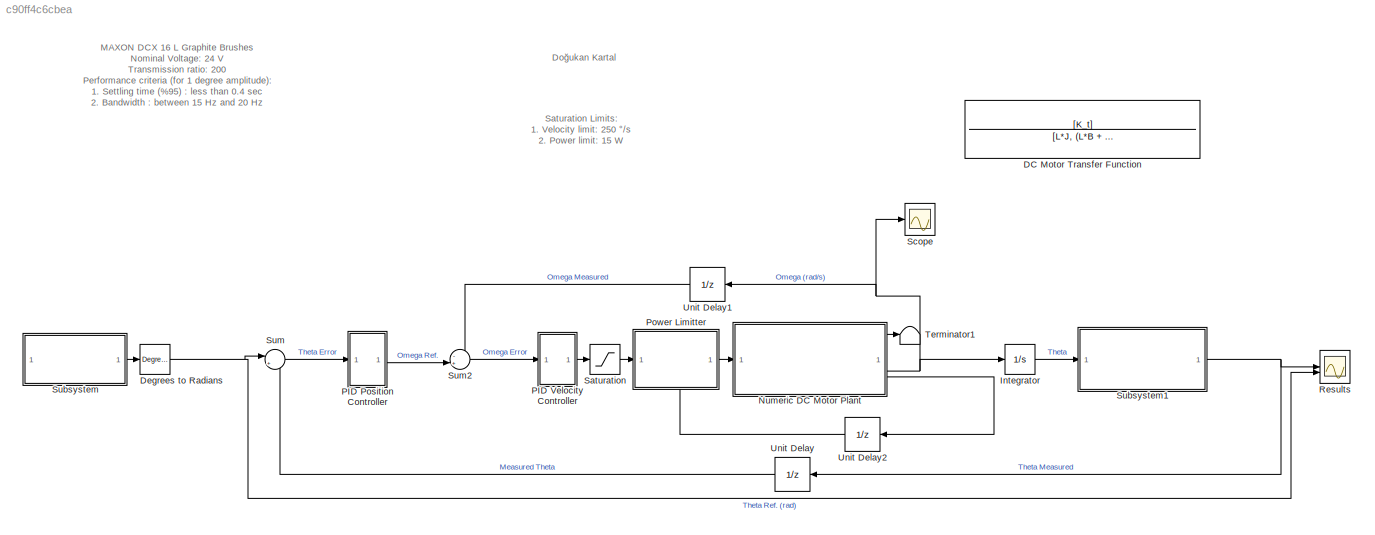
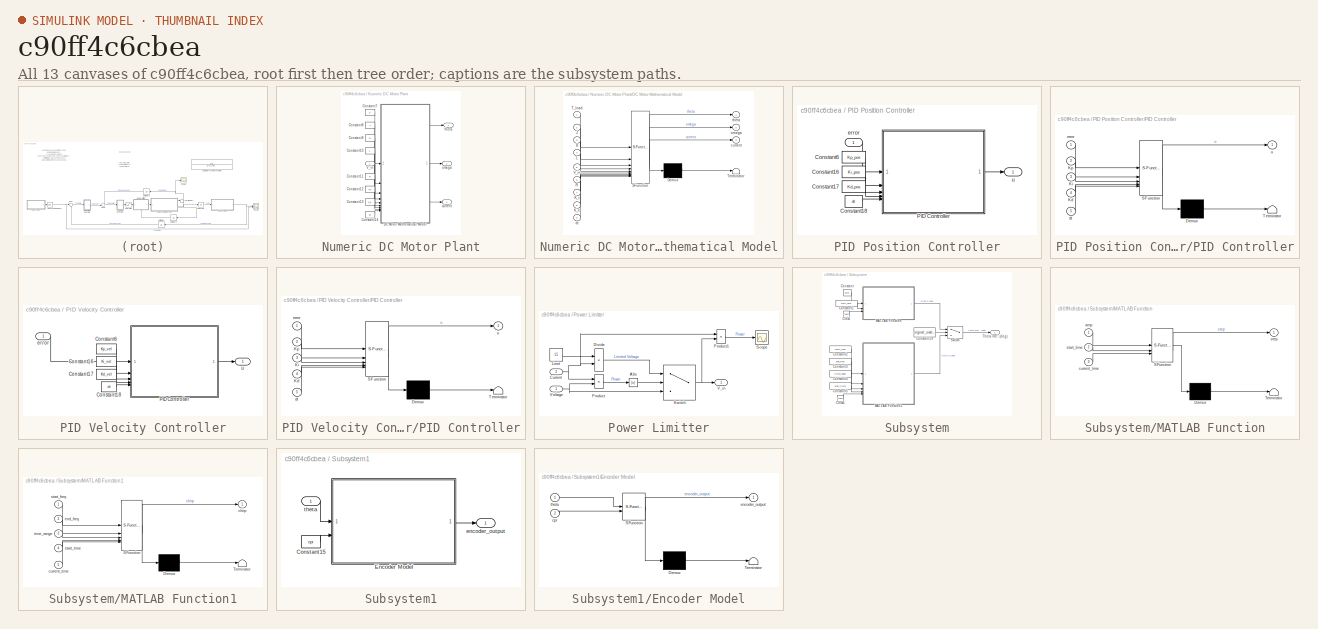
[diagram: thumbnail index - all 13 canvases of the model, root first then tree order]
MODEL slx_c90ff4c6cbea
KIND model
CONFIG AbsTol = auto
CONFIG EnableMultiTasking = off
CONFIG FixedStep = dt
CONFIG MaxStep = auto
CONFIG MinStep = auto
CONFIG RelTol = 1e-3
CONFIG SampleTimeConstraint = Unconstrained
CONFIG SolverName = FixedStepAuto
CONFIG StartTime = 0.0
CONFIG StopTime = 3
BLOCK [TransferFcn] DC Motor Transfer Function
  Commented = on
  Denominator = [L*J, (L*B + R*J), R*B + K_t*K_e]
  Numerator = [K_t]
BLOCK [Reference] Degrees to Radians  REF=simulink_extras/Transformations/Degrees to
Radians
  SourceBlock = simulink_extras/Transformations/Degrees to\nRadians
  SourceType = DegreesToRadians
BLOCK [Integrator] Integrator
BLOCK [SubSystem] Numeric DC Motor Plant
BLOCK [Constant] Numeric DC Motor Plant/Constant10
  Value = L
BLOCK [Constant] Numeric DC Motor Plant/Constant11
  Value = R
BLOCK [Constant] Numeric DC Motor Plant/Constant12
  Value = K_t
BLOCK [Constant] Numeric DC Motor Plant/Constant13
  Value = K_e
BLOCK [Constant] Numeric DC Motor Plant/Constant14
  Value = dt
BLOCK [Constant] Numeric DC Motor Plant/Constant7
  Value = 0
BLOCK [Constant] Numeric DC Motor Plant/Constant8
  Value = J
BLOCK [Constant] Numeric DC Motor Plant/Constant9
  Value = B
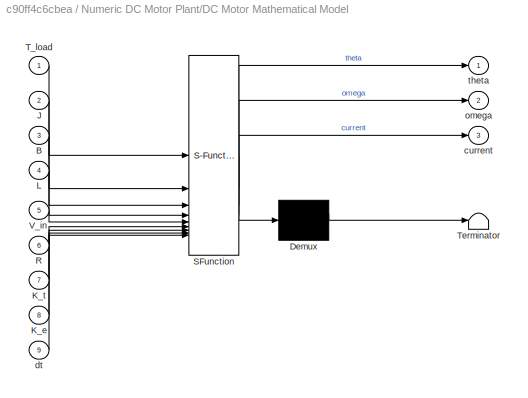
BLOCK [SubSystem] Numeric DC Motor Plant/DC Motor Mathematical Model
  ErrorFcn = Stateflow.Translate.translate
  LibrarySourceBlock = simulink/User-Defined\nFunctions/MATLAB Function
  PermitHierarchicalResolution = ExplicitOnly
  SFBlockType = MATLAB Function
  TreatAsAtomicUnit = on
BLOCK [Demux] Numeric DC Motor Plant/DC Motor Mathematical Model/ Demux 
  Outputs = 1
BLOCK [S-Function] Numeric DC Motor Plant/DC Motor Mathematical Model/ SFunction 
  EnableBusSupport = on
  FunctionName = sf_sfun
  PortCounts = [9 4]
  SFcnIsStateOwnerBlock = off
  SFunctionDeploymentMode = off
  Tag = Stateflow S-Function 3
BLOCK [Terminator] Numeric DC Motor Plant/DC Motor Mathematical Model/ Terminator 
BLOCK [Inport] Numeric DC Motor Plant/DC Motor Mathematical Model/B
  Port = 3
BLOCK [Inport] Numeric DC Motor Plant/DC Motor Mathematical Model/J
  Port = 2
BLOCK [Inport] Numeric DC Motor Plant/DC Motor Mathematical Model/K_e
  Port = 8
BLOCK [Inport] Numeric DC Motor Plant/DC Motor Mathematical Model/K_t
  Port = 7
BLOCK [Inport] Numeric DC Motor Plant/DC Motor Mathematical Model/L
  Port = 4
BLOCK [Inport] Numeric DC Motor Plant/DC Motor Mathematical Model/R
  Port = 6
BLOCK [Inport] Numeric DC Motor Plant/DC Motor Mathematical Model/T_load
BLOCK [Inport] Numeric DC Motor Plant/DC Motor Mathematical Model/V_in
  Port = 5
BLOCK [Outport] Numeric DC Motor Plant/DC Motor Mathematical Model/current
  Port = 3
BLOCK [Inport] Numeric DC Motor Plant/DC Motor Mathematical Model/dt
  Port = 9
BLOCK [Outport] Numeric DC Motor Plant/DC Motor Mathematical Model/omega
  Port = 2
BLOCK [Outport] Numeric DC Motor Plant/DC Motor Mathematical Model/theta
BLOCK [Inport] Numeric DC Motor Plant/V_in
BLOCK [Outport] Numeric DC Motor Plant/current
  Port = 3
BLOCK [Outport] Numeric DC Motor Plant/omega
  Port = 2
BLOCK [Outport] Numeric DC Motor Plant/theta
BLOCK [SubSystem] PID Position Controller
BLOCK [Constant] PID Position Controller/Constant16
  Value = Ki_pos
BLOCK [Constant] PID Position Controller/Constant17
  Value = Kd_pos
BLOCK [Constant] PID Position Controller/Constant18
  Value = dt
BLOCK [Constant] PID Position Controller/Constant6
  Value = Kp_pos
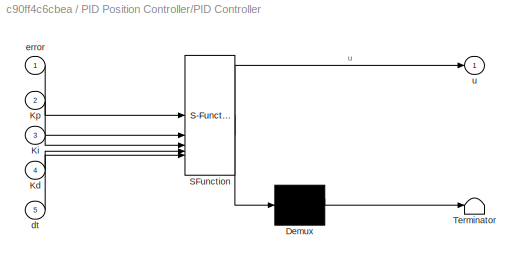
BLOCK [SubSystem] PID Position Controller/PID Controller
  ErrorFcn = Stateflow.Translate.translate
  LibrarySourceBlock = simulink/User-Defined\nFunctions/MATLAB Function
  PermitHierarchicalResolution = ExplicitOnly
  SFBlockType = MATLAB Function
  TreatAsAtomicUnit = on
BLOCK [Demux] PID Position Controller/PID Controller/ Demux 
  Outputs = 1
BLOCK [S-Function] PID Position Controller/PID Controller/ SFunction 
  EnableBusSupport = on
  FunctionName = sf_sfun
  PortCounts = [5 2]
  SFcnIsStateOwnerBlock = off
  SFunctionDeploymentMode = off
  Tag = Stateflow S-Function 6
BLOCK [Terminator] PID Position Controller/PID Controller/ Terminator 
BLOCK [Inport] PID Position Controller/PID Controller/Kd
  Port = 4
BLOCK [Inport] PID Position Controller/PID Controller/Ki
  Port = 3
BLOCK [Inport] PID Position Controller/PID Controller/Kp
  Port = 2
BLOCK [Inport] PID Position Controller/PID Controller/dt
  Port = 5
BLOCK [Inport] PID Position Controller/PID Controller/error
BLOCK [Outport] PID Position Controller/PID Controller/u
BLOCK [Inport] PID Position Controller/error
  NameLocation = top
BLOCK [Outport] PID Position Controller/u
BLOCK [SubSystem] PID Velocity Controller
BLOCK [Constant] PID Velocity Controller/Constant16
  Value = Ki_vel
BLOCK [Constant] PID Velocity Controller/Constant17
  Value = Kd_vel
BLOCK [Constant] PID Velocity Controller/Constant18
  Value = dt
BLOCK [Constant] PID Velocity Controller/Constant6
  Value = Kp_vel
BLOCK [SubSystem] PID Velocity Controller/PID Controller
  ErrorFcn = Stateflow.Translate.translate
  LibrarySourceBlock = simulink/User-Defined\nFunctions/MATLAB Function
  PermitHierarchicalResolution = ExplicitOnly
  SFBlockType = MATLAB Function
  TreatAsAtomicUnit = on
BLOCK [Demux] PID Velocity Controller/PID Controller/ Demux 
  Outputs = 1
BLOCK [S-Function] PID Velocity Controller/PID Controller/ SFunction 
  EnableBusSupport = on
  FunctionName = sf_sfun
  PortCounts = [5 2]
  SFcnIsStateOwnerBlock = off
  SFunctionDeploymentMode = off
  Tag = Stateflow S-Function 5
BLOCK [Terminator] PID Velocity Controller/PID Controller/ Terminator 
BLOCK [Inport] PID Velocity Controller/PID Controller/Kd
  Port = 4
BLOCK [Inport] PID Velocity Controller/PID Controller/Ki
  Port = 3
BLOCK [Inport] PID Velocity Controller/PID Controller/Kp
  Port = 2
BLOCK [Inport] PID Velocity Controller/PID Controller/dt
  Port = 5
BLOCK [Inport] PID Velocity Controller/PID Controller/error
BLOCK [Outport] PID Velocity Controller/PID Controller/u
BLOCK [Inport] PID Velocity Controller/error
BLOCK [Outport] PID Velocity Controller/u
BLOCK [SubSystem] Power Limitter
  NameLocation = top
  PortSchema = {"entries":[{"content":{"sides":[{"content":{"connectorIds":["In1"]},"type":"ConnectorPlacement.EquallySpacedRectSide","uuid":"0eeb06f6-9815-4848-984a-49d97fe300a8"},{"content":{"connectorIds":["Out1"],"side":"RIGHT"},"type":"ConnectorPlacement.EquallySpacedRectSide","uuid":"7a8b407b-a98a-4788-978f-1411a8c2a655"},{"content":{"side":"TOP"},"type":"ConnectorPlacement.EquallySpacedRectSide","uuid":"9...<+371ch>
BLOCK [Abs] Power Limitter/Abs
  SaturateOnIntegerOverflow = off
BLOCK [Inport] Power Limitter/Current
  Port = 2
BLOCK [Product] Power Limitter/Divide
  Inputs = */
BLOCK [Constant] Power Limitter/Limit
  NameLocation = top
  Value = 15
BLOCK [Product] Power Limitter/Product
BLOCK [Product] Power Limitter/Product1
BLOCK [Scope] Power Limitter/Scope
  Floating = off
  NumInputPorts = 1
  ScopeSpecificationString = Simulink.scopes.TimeScopeBlockCfg('CurrentConfiguration', extmgr.ConfigurationSet(extmgr.Configuration('Core','General UI',true),extmgr.Configuration('Core','Source UI',true),extmgr.Configuration('Sources','WiredSimulink',true,'DataLoggingVariableName','ScopeData3'),extmgr.Configuration('Visuals','Time Domain',true,'SerializedDisplays',{struct('MinYLimReal','-16.56247','MaxYLimReal','17.28359','YL...<+1532ch>
BLOCK [Switch] Power Limitter/Switch
  InputSameDT = off
  SaturateOnIntegerOverflow = off
  Threshold = 15
BLOCK [Outport] Power Limitter/V_in
BLOCK [Inport] Power Limitter/Voltage
BLOCK [Scope] Results
  Floating = off
  NumInputPorts = 2
  ScopeSpecificationString = Simulink.scopes.TimeScopeBlockCfg('CurrentConfiguration', extmgr.ConfigurationSet(extmgr.Configuration('Core','General UI',true),extmgr.Configuration('Core','Source UI',true),extmgr.Configuration('Sources','WiredSimulink',true,'DataLoggingVariableName','ScopeData2'),extmgr.Configuration('Visuals','Time Domain',true,'SerializedDisplays',{struct('MinYLimReal','-0.43764','MaxYLimReal','3.93879','YLab...<+1556ch>
BLOCK [Saturate] Saturation
  LowerLimit = -24
  UpperLimit = 24
BLOCK [Scope] Scope
  Floating = off
  NumInputPorts = 1
  ScopeSpecificationString = Simulink.scopes.TimeScopeBlockCfg('CurrentConfiguration', extmgr.ConfigurationSet(extmgr.Configuration('Core','General UI',true),extmgr.Configuration('Core','Source UI',true),extmgr.Configuration('Sources','WiredSimulink',true,'DataLoggingVariableName','ScopeData1'),extmgr.Configuration('Visuals','Time Domain',true,'SerializedDisplays',{struct('MinYLimReal','-0.30529','MaxYLimReal','4.48873','YLab...<+1536ch>
BLOCK [SubSystem] Subsystem
BLOCK [Clock] Subsystem/Clock
BLOCK [Clock] Subsystem/Clock1
BLOCK [Constant] Subsystem/Constant
  Value = amp
BLOCK [Constant] Subsystem/Constant1
  Value = start_time
BLOCK [Constant] Subsystem/Constant19
  Value = signal_switch
BLOCK [Constant] Subsystem/Constant2
  Value = start_freq
BLOCK [Constant] Subsystem/Constant3
  Value = end_freq
BLOCK [Constant] Subsystem/Constant4
  Value = time_range
BLOCK [Constant] Subsystem/Constant5
  Value = start_time
BLOCK [SubSystem] Subsystem/MATLAB Function
  ErrorFcn = Stateflow.Translate.translate
  LibrarySourceBlock = simulink/User-Defined\nFunctions/MATLAB Function
  PermitHierarchicalResolution = ExplicitOnly
  SFBlockType = MATLAB Function
  TreatAsAtomicUnit = on
BLOCK [Demux] Subsystem/MATLAB Function/ Demux 
  Outputs = 1
BLOCK [S-Function] Subsystem/MATLAB Function/ SFunction 
  EnableBusSupport = on
  FunctionName = sf_sfun
  PortCounts = [3 2]
  SFcnIsStateOwnerBlock = off
  SFunctionDeploymentMode = off
  Tag = Stateflow S-Function 2
BLOCK [Terminator] Subsystem/MATLAB Function/ Terminator 
BLOCK [Inport] Subsystem/MATLAB Function/amp
BLOCK [Inport] Subsystem/MATLAB Function/current_time
  Port = 3
BLOCK [Inport] Subsystem/MATLAB Function/start_time
  Port = 2
BLOCK [Outport] Subsystem/MATLAB Function/step
BLOCK [SubSystem] Subsystem/MATLAB Function1
  ErrorFcn = Stateflow.Translate.translate
  LibrarySourceBlock = simulink/User-Defined\nFunctions/MATLAB Function
  PermitHierarchicalResolution = ExplicitOnly
  SFBlockType = MATLAB Function
  TreatAsAtomicUnit = on
BLOCK [Demux] Subsystem/MATLAB Function1/ Demux 
  Outputs = 1
BLOCK [S-Function] Subsystem/MATLAB Function1/ SFunction 
  EnableBusSupport = on
  FunctionName = sf_sfun
  PortCounts = [5 2]
  SFcnIsStateOwnerBlock = off
  SFunctionDeploymentMode = off
  Tag = Stateflow S-Function 1
BLOCK [Terminator] Subsystem/MATLAB Function1/ Terminator 
BLOCK [Outport] Subsystem/MATLAB Function1/chirp
BLOCK [Inport] Subsystem/MATLAB Function1/current_time
  Port = 5
BLOCK [Inport] Subsystem/MATLAB Function1/end_freq
  Port = 2
BLOCK [Inport] Subsystem/MATLAB Function1/start_freq
BLOCK [Inport] Subsystem/MATLAB Function1/start_time
  Port = 4
BLOCK [Inport] Subsystem/MATLAB Function1/time_range
  Port = 3
BLOCK [Switch] Subsystem/Switch
  Criteria = u2 > Threshold
  InputSameDT = off
  SaturateOnIntegerOverflow = off
BLOCK [Outport] Subsystem/Theta Ref. (deg)
BLOCK [SubSystem] Subsystem1
BLOCK [Constant] Subsystem1/Constant15
  Value = cpr
BLOCK [SubSystem] Subsystem1/Encoder Model
  ErrorFcn = Stateflow.Translate.translate
  LibrarySourceBlock = simulink/User-Defined\nFunctions/MATLAB Function
  PermitHierarchicalResolution = ExplicitOnly
  SFBlockType = MATLAB Function
  TreatAsAtomicUnit = on
BLOCK [Demux] Subsystem1/Encoder Model/ Demux 
  Outputs = 1
BLOCK [S-Function] Subsystem1/Encoder Model/ SFunction 
  EnableBusSupport = on
  FunctionName = sf_sfun
  PortCounts = [2 2]
  SFcnIsStateOwnerBlock = off
  SFunctionDeploymentMode = off
  Tag = Stateflow S-Function 4
BLOCK [Terminator] Subsystem1/Encoder Model/ Terminator 
BLOCK [Inport] Subsystem1/Encoder Model/cpr
  Port = 2
BLOCK [Outport] Subsystem1/Encoder Model/encoder_output
BLOCK [Inport] Subsystem1/Encoder Model/theta
BLOCK [Outport] Subsystem1/encoder_output
BLOCK [Inport] Subsystem1/theta
BLOCK [Sum] Sum
  Inputs = |+-
BLOCK [Sum] Sum2
  Inputs = -+|
BLOCK [Terminator] Terminator1
BLOCK [UnitDelay] Unit Delay
  HasFrameUpgradeWarning = on
  NameLocation = top
  SampleTime = -1
BLOCK [UnitDelay] Unit Delay1
  HasFrameUpgradeWarning = on
  NameLocation = top
  SampleTime = -1
BLOCK [UnitDelay] Unit Delay2
  HasFrameUpgradeWarning = on
  NameLocation = top
  SampleTime = -1
ANNOTATION (root): Doğukan Kartal
ANNOTATION (root): Saturation Limits: 1. Velocity limit: 250 °/s 2. Power limit: 15 W
ANNOTATION (root): MAXON DCX 16 L Graphite Brushes Nominal Voltage: 24 V Transmission ratio: 200 Performance criteria (for 1 degree amplitude): 1. Settling time (%95) : less than 0.4 sec 2. Bandwidth : between 15 Hz and 20 Hz 3. Rise time : less than 0.2 sec 4. Steady state error : %2 5. Overshoot : %5 6. Positional Resolution: : 1 mdeg
NET Degrees to Radians:1 -> Results:2, Sum:1
LINE Integrator:1 -> Subsystem1:1
LINE Numeric DC Motor Plant/Constant10:1 -> Numeric DC Motor Plant/DC Motor Mathematical Model:4
LINE Numeric DC Motor Plant/Constant11:1 -> Numeric DC Motor Plant/DC Motor Mathematical Model:6
LINE Numeric DC Motor Plant/Constant12:1 -> Numeric DC Motor Plant/DC Motor Mathematical Model:7
LINE Numeric DC Motor Plant/Constant13:1 -> Numeric DC Motor Plant/DC Motor Mathematical Model:8
LINE Numeric DC Motor Plant/Constant14:1 -> Numeric DC Motor Plant/DC Motor Mathematical Model:9
LINE Numeric DC Motor Plant/Constant7:1 -> Numeric DC Motor Plant/DC Motor Mathematical Model:1
LINE Numeric DC Motor Plant/Constant8:1 -> Numeric DC Motor Plant/DC Motor Mathematical Model:2
LINE Numeric DC Motor Plant/Constant9:1 -> Numeric DC Motor Plant/DC Motor Mathematical Model:3
LINE Numeric DC Motor Plant/DC Motor Mathematical Model:1 -> Numeric DC Motor Plant/theta:1
LINE Numeric DC Motor Plant/DC Motor Mathematical Model:2 -> Numeric DC Motor Plant/omega:1
LINE Numeric DC Motor Plant/DC Motor Mathematical Model:3 -> Numeric DC Motor Plant/current:1
LINE Numeric DC Motor Plant/V_in:1 -> Numeric DC Motor Plant/DC Motor Mathematical Model:5
LINE Numeric DC Motor Plant:1 -> Terminator1:1
NET Numeric DC Motor Plant:2 -> Integrator:1, Scope:1, Unit Delay1:1
LINE Numeric DC Motor Plant:3 -> Unit Delay2:1
LINE PID Position Controller/Constant16:1 -> PID Position Controller/PID Controller:3
LINE PID Position Controller/Constant17:1 -> PID Position Controller/PID Controller:4
LINE PID Position Controller/Constant18:1 -> PID Position Controller/PID Controller:5
LINE PID Position Controller/Constant6:1 -> PID Position Controller/PID Controller:2
LINE PID Position Controller/PID Controller:1 -> PID Position Controller/u:1
LINE PID Position Controller/error:1 -> PID Position Controller/PID Controller:1
LINE PID Position Controller:1 -> Sum2:2
LINE PID Velocity Controller/Constant16:1 -> PID Velocity Controller/PID Controller:3
LINE PID Velocity Controller/Constant17:1 -> PID Velocity Controller/PID Controller:4
LINE PID Velocity Controller/Constant18:1 -> PID Velocity Controller/PID Controller:5
LINE PID Velocity Controller/Constant6:1 -> PID Velocity Controller/PID Controller:2
LINE PID Velocity Controller/PID Controller:1 -> PID Velocity Controller/u:1
LINE PID Velocity Controller/error:1 -> PID Velocity Controller/PID Controller:1
LINE PID Velocity Controller:1 -> Saturation:1
LINE Power Limitter/Abs:1 -> Power Limitter/Switch:2
NET Power Limitter/Current:1 -> Power Limitter/Divide:2, Power Limitter/Product1:1, Power Limitter/Product:1
LINE Power Limitter/Divide:1 -> Power Limitter/Switch:1
LINE Power Limitter/Limit:1 -> Power Limitter/Divide:1
LINE Power Limitter/Product1:1 -> Power Limitter/Scope:1
LINE Power Limitter/Product:1 -> Power Limitter/Abs:1
NET Power Limitter/Switch:1 -> Power Limitter/Product1:2, Power Limitter/V_in:1
NET Power Limitter/Voltage:1 -> Power Limitter/Product:2, Power Limitter/Switch:3
LINE Power Limitter:1 -> Numeric DC Motor Plant:1
LINE Saturation:1 -> Power Limitter:1
LINE Subsystem/Clock1:1 -> Subsystem/MATLAB Function1:5
LINE Subsystem/Clock:1 -> Subsystem/MATLAB Function:3
LINE Subsystem/Constant19:1 -> Subsystem/Switch:2
LINE Subsystem/Constant1:1 -> Subsystem/MATLAB Function:2
LINE Subsystem/Constant2:1 -> Subsystem/MATLAB Function1:1
LINE Subsystem/Constant3:1 -> Subsystem/MATLAB Function1:2
LINE Subsystem/Constant4:1 -> Subsystem/MATLAB Function1:3
LINE Subsystem/Constant5:1 -> Subsystem/MATLAB Function1:4
LINE Subsystem/Constant:1 -> Subsystem/MATLAB Function:1
LINE Subsystem/MATLAB Function1:1 -> Subsystem/Switch:3
LINE Subsystem/MATLAB Function:1 -> Subsystem/Switch:1
LINE Subsystem/Switch:1 -> Subsystem/Theta Ref. (deg):1
LINE Subsystem1/Constant15:1 -> Subsystem1/Encoder Model:2
LINE Subsystem1/Encoder Model:1 -> Subsystem1/encoder_output:1
LINE Subsystem1/theta:1 -> Subsystem1/Encoder Model:1
NET Subsystem1:1 -> Results:1, Unit Delay:1
LINE Subsystem:1 -> Degrees to Radians:1
LINE Sum2:1 -> PID Velocity Controller:1
LINE Sum:1 -> PID Position Controller:1
LINE Unit Delay1:1 -> Sum2:1
LINE Unit Delay2:1 -> Power Limitter:2
LINE Unit Delay:1 -> Sum:2
note: NET lines group one-source signal fan-out (src -> all destinations, sorted); 1:1 wires keep LINE
CHART Subsystem/MATLAB Function1 states=1 transitions=1
  STATE_LABEL 'eML_blk_kernel()'
  STATE_LABEL 'SCRIPT:\nfunction chirp  = generate_chirp(start_freq, end_freq, time_range, start_time, current_time)\n    \n    if current_time >= start_time && current_time <= time_range\n        k = (end_freq - start_freq) / time_range;\n        chirp = sin(2 * pi * (start_freq * current_time + 0.5 * k * current_time^2));\n    else\n        chirp = 0;\n    end\nend'
CHART Subsystem/MATLAB Function states=1 transitions=1
  STATE_LABEL 'eML_blk_kernel()'
  STATE_LABEL 'SCRIPT:\nfunction step  = generate_step(amp, start_time, current_time)\n    if current_time >= start_time\n        step = amp;\n    else\n        step = 0;\n    end\nend'
CHART Numeric DC Motor Plant/DC Motor Mathematical Model states=1 transitions=1
  STATE_LABEL 'eML_blk_kernel()'
  STATE_LABEL 'SCRIPT:\nfunction [theta, omega, current] = DCmotor(T_load, J, B, L, V_in, R, K_t, K_e, dt)\n    % V_in: Input Voltage (V) {24}\n    % T_load: Load torque (Nm)\n    % J: Moment of Inertia (kg.m^2) {2.28 x 10^(-7)}\n    % B: Viscous Damping Coefficient (Nm.s/rad) {5.09 x 10^(-5)}\n    % L: Inductance (H) {0.411 x 10^(-3)}\n    % R: Resistance (Ohm) {6.23}\n    % K_t: Torque Constant (Nm/A) {17.8 x 10^(-3)}...<+638ch>'
CHART Subsystem1/Encoder Model states=1 transitions=1
  STATE_LABEL 'eML_blk_kernel()'
  STATE_LABEL 'SCRIPT:\nfunction encoder_output  = encoder(theta, cpr)\n    count = round(theta * (cpr / (2 * pi)));\n    encoder_output = count * (2 * pi / cpr);\nend'
CHART PID Velocity Controller/PID Controller states=1 transitions=1
  STATE_LABEL 'eML_blk_kernel()'
  STATE_LABEL 'SCRIPT:\nfunction u = PID(error, Kp, Ki, Kd, dt)\n        \n    persistent prev_error error_sum\n    \n    if isempty(prev_error)\n        prev_error = 0;\n        error_sum = 0;\n    end\n    \n    %Proportional\n    P = Kp * error;\n    \n    %Integral\n    error_sum = error_sum + error * dt;\n    I = Ki * error_sum;\n    \n    %Derivative\n    D = Kd * (error - prev_error) / dt;\n    \n    %Control Signal\n    u = ...<+74ch>'
CHART PID Position Controller/PID Controller states=1 transitions=1
  STATE_LABEL 'eML_blk_kernel()'
  STATE_LABEL 'SCRIPT:\nfunction u = PID(error, Kp, Ki, Kd, dt)\n        \n    persistent prev_error error_sum\n    \n    if isempty(prev_error)\n        prev_error = 0;\n        error_sum = 0;\n    end\n    \n    %Proportional\n    P = Kp * error;\n    \n    %Integral\n    error_sum = error_sum + error * dt;\n    I = Ki * error_sum;\n    \n    %Derivative\n    D = Kd * (error - prev_error) / dt;\n    \n    %Control Signal\n    u = ...<+74ch>'
CHART  states=0 transitions=0
CHART  states=0 transitions=0
CHART  states=0 transitions=0
CHART  states=0 transitions=0
CHART  states=0 transitions=0
CHART  states=0 transitions=0
